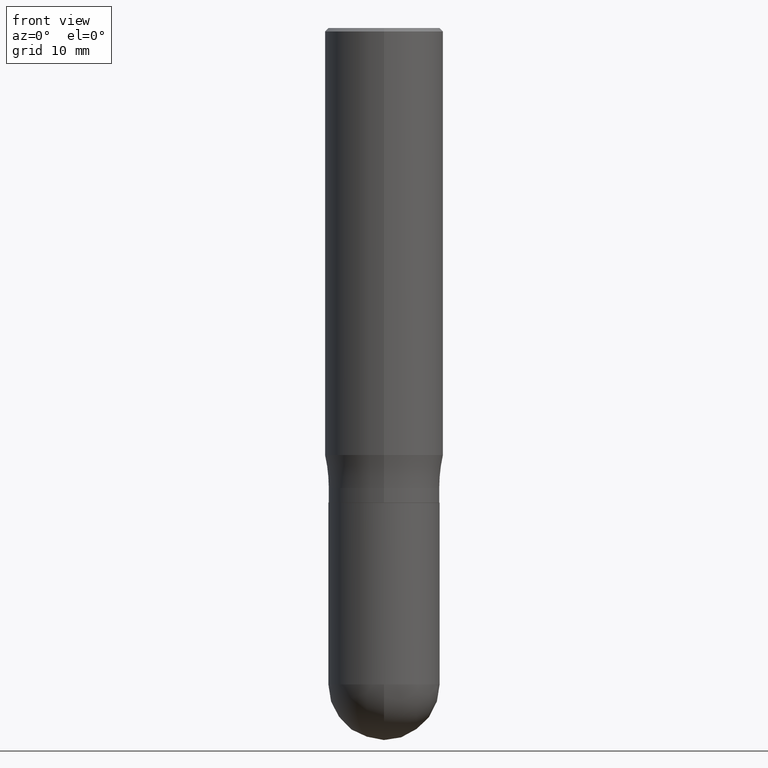
[diagram: clean part render]
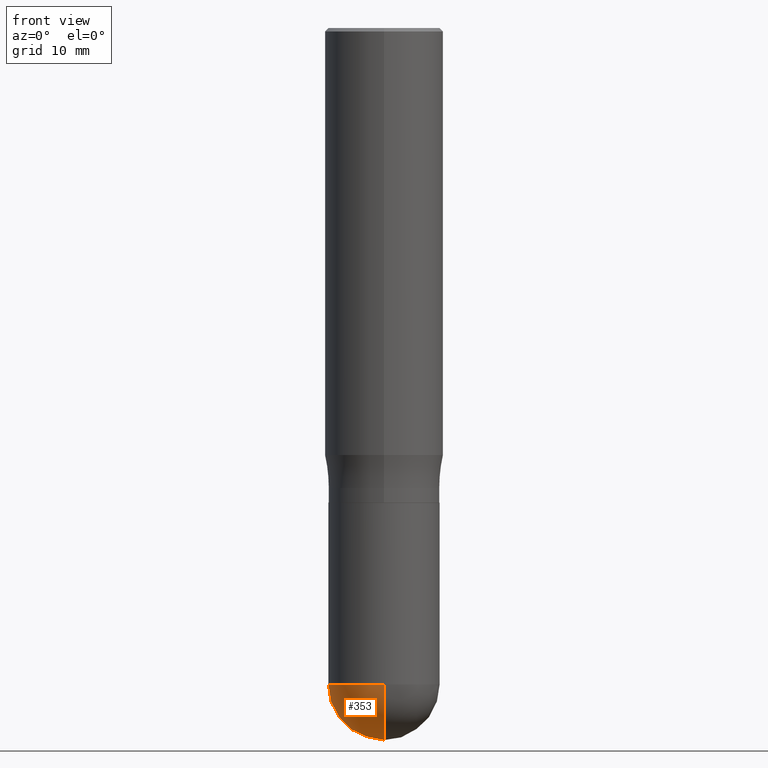
[diagram: same view with one face highlighted and labeled with its STEP entity id]
A machine part, front view. The second image highlights one B-rep face of the part: STEP entity #353.
In plain terms, the highlighted spherical surface has radius 5.9538 mm.
Its self-contained STEP definition (entity closure, byte-faithful):
#27 = DIRECTION ( 'NONE',  ( 1.000000000000000000, -6.982962677686269077E-15, 0.000000000000000000 ) ) ;
#34 = FACE_OUTER_BOUND ( 'NONE', #319, .T. ) ;
#35 = ORIENTED_EDGE ( 'NONE', *, *, #58, .T. ) ;
#38 = EDGE_CURVE ( 'NONE', #290, #60, #314, .T. ) ;
#41 = ORIENTED_EDGE ( 'NONE', *, *, #38, .F. ) ;
#42 = DIRECTION ( 'NONE',  ( 6.982962677686265922E-15, 1.000000000000000000, -2.330928322239131685E-15 ) ) ;
#58 = EDGE_CURVE ( 'NONE', #290, #406, #161, .T. ) ;
#60 = VERTEX_POINT ( 'NONE', #438 ) ;
#77 = CARTESIAN_POINT ( 'NONE',  ( 6.764522589796733920E-29, -9.654130341697934439E-15, -2.765600000000000058 ) ) ;
#90 = CIRCLE ( 'NONE', #186, 0.2344000000000000250 ) ;
#94 = DIRECTION ( 'NONE',  ( 1.000000000000000000, -6.982962677686265922E-15, 4.883557194083112340E-29 ) ) ;
#112 = CIRCLE ( 'NONE', #407, 0.2344000000000000250 ) ;
#119 = VERTEX_POINT ( 'NONE', #142 ) ;
#138 = DIRECTION ( 'NONE',  ( -1.000000000000000000, 7.105427357601001070E-15, -4.926315508542082329E-29 ) ) ;
#142 = CARTESIAN_POINT ( 'NONE',  ( -0.2344000000000000250, -6.653989561573774307E-15, -2.765600000000000058 ) ) ;
#144 = EDGE_CURVE ( 'NONE', #60, #119, #90, .T. ) ;
#161 = CIRCLE ( 'NONE', #497, 0.2344000000000000528 ) ;
#186 = AXIS2_PLACEMENT_3D ( 'NONE', #413, #296, #27 ) ;
#206 = AXIS2_PLACEMENT_3D ( 'NONE', #440, #94, #480 ) ;
#229 = CARTESIAN_POINT ( 'NONE',  ( 7.347763026875712115E-29, -1.045818070703676051E-14, -3.000000000000000444 ) ) ;
#290 = VERTEX_POINT ( 'NONE', #229 ) ;
#296 = DIRECTION ( 'NONE',  ( -2.445468806185136597E-29, 3.491481338843145583E-15, 1.000000000000000000 ) ) ;
#298 = EDGE_CURVE ( 'NONE', #119, #406, #112, .T. ) ;
#307 = DIRECTION ( 'NONE',  ( -2.445468806185136597E-29, 3.491481338843145583E-15, 1.000000000000000000 ) ) ;
#312 = SPHERICAL_SURFACE ( 'NONE', #421, 0.2344000000000000528 ) ;
#314 = CIRCLE ( 'NONE', #206, 0.2344000000000000528 ) ;
#319 = EDGE_LOOP ( 'NONE', ( #41, #35, #422, #507 ) ) ;
#323 = CARTESIAN_POINT ( 'NONE',  ( 6.764522589796733920E-29, -9.654130341697934439E-15, -2.765600000000000058 ) ) ;
#339 = CARTESIAN_POINT ( 'NONE',  ( 6.763188530385614545E-29, -9.656040790704603926E-15, -2.765600000000000058 ) ) ;
#353 = ADVANCED_FACE ( 'NONE', ( #34 ), #312, .T. ) ;
#386 = DIRECTION ( 'NONE',  ( 1.000000000000000000, -6.982962677686269077E-15, 0.000000000000000000 ) ) ;
#406 = VERTEX_POINT ( 'NONE', #435 ) ;
#407 = AXIS2_PLACEMENT_3D ( 'NONE', #339, #307, #386 ) ;
#409 = DIRECTION ( 'NONE',  ( -7.105427357601001070E-15, -1.000000000000000000, 0.000000000000000000 ) ) ;
#413 = CARTESIAN_POINT ( 'NONE',  ( 6.763188530385614545E-29, -9.656040790704603926E-15, -2.765600000000000058 ) ) ;
#421 = AXIS2_PLACEMENT_3D ( 'NONE', #323, #467, #42 ) ;
#422 = ORIENTED_EDGE ( 'NONE', *, *, #298, .F. ) ;
#435 = CARTESIAN_POINT ( 'NONE',  ( -1.665512172621607171E-15, -0.2344000000000097395, -2.765599999999999614 ) ) ;
#438 = CARTESIAN_POINT ( 'NONE',  ( 1.636806451649728555E-15, 0.2343999999999903938, -2.765600000000000502 ) ) ;
#440 = CARTESIAN_POINT ( 'NONE',  ( 6.764522589796733920E-29, -9.654130341697934439E-15, -2.765600000000000058 ) ) ;
#467 = DIRECTION ( 'NONE',  ( -1.000000000000000000, 6.982962677686265922E-15, -4.883557194083112901E-29 ) ) ;
#480 = DIRECTION ( 'NONE',  ( 6.982962677686265922E-15, 1.000000000000000000, 0.000000000000000000 ) ) ;
#497 = AXIS2_PLACEMENT_3D ( 'NONE', #77, #138, #409 ) ;
#507 = ORIENTED_EDGE ( 'NONE', *, *, #144, .F. ) ;